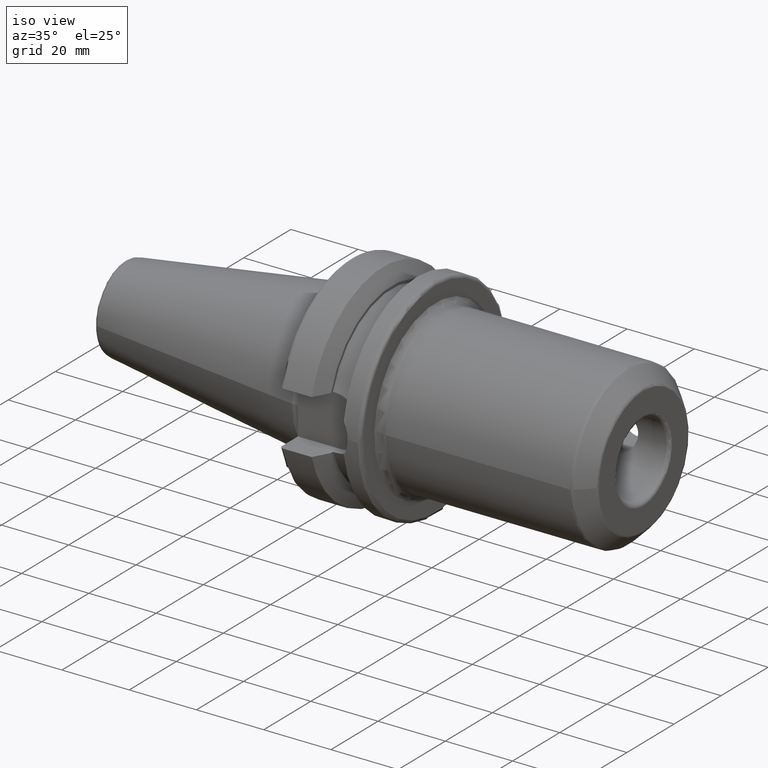
[diagram: clean part render]
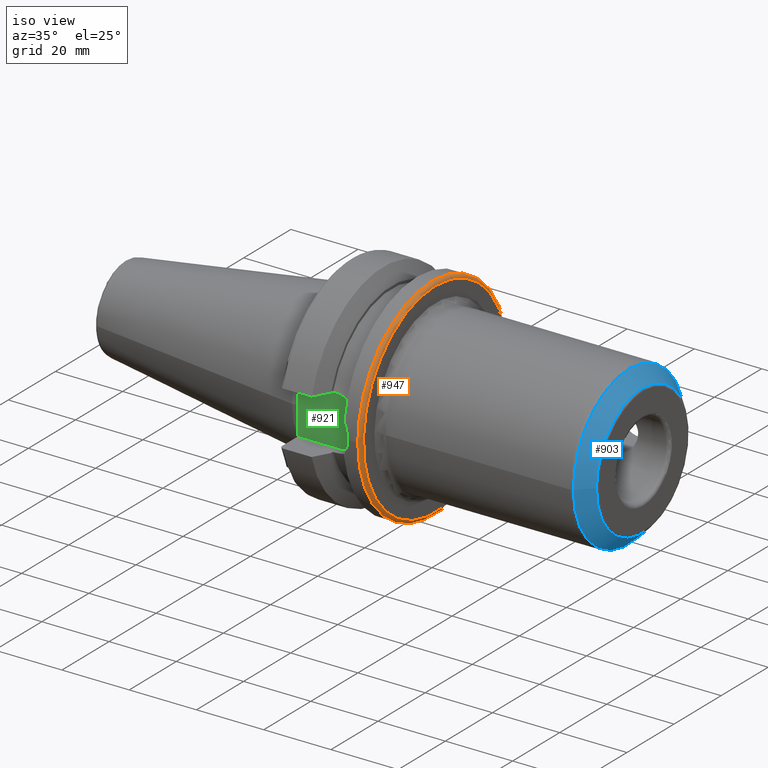
[diagram: same view with three faces highlighted in distinct colors, each labeled with its STEP entity id]
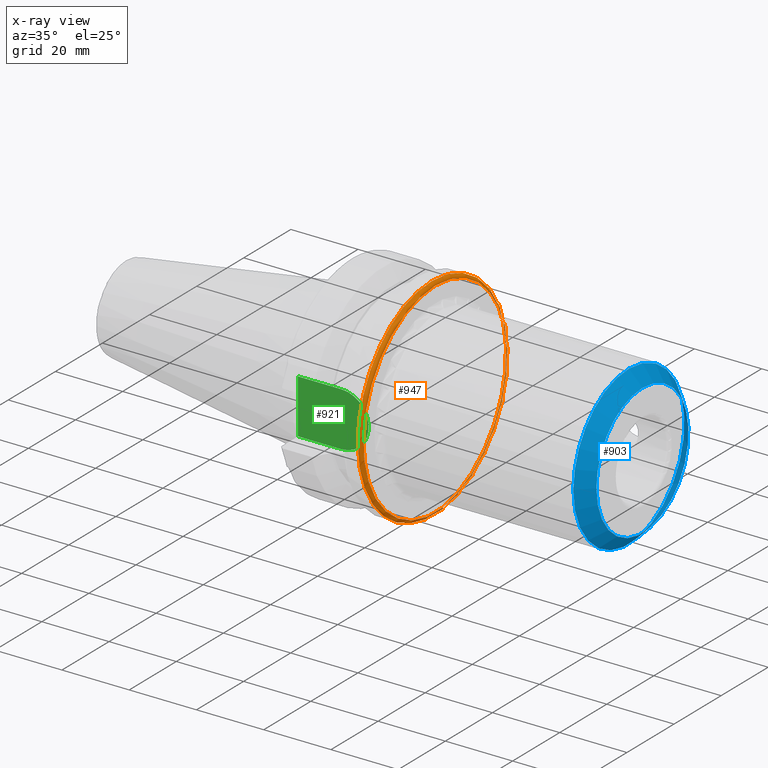
[diagram: x-ray of the same camera — body ghosted, the three highlighted faces saturated]
A machine part, iso view with three faces highlighted in distinct colors.
The next image is the same camera in x-ray (body ghosted, the three faces saturated) — at least one of them is partly hidden behind the body in this view.
Their STEP definitions:

[orange] entity #947 — the highlighted toroidal blend (fillet) surface has major radius 30.5 mm and minor (blend) radius 1 mm.
#243=FACE_OUTER_BOUND('',#308,.T.);
#308=EDGE_LOOP('',(#862,#863,#864,#865,#866));
#335=CIRCLE('',#1004,30.5);
#343=CIRCLE('',#1025,31.5);
#346=CIRCLE('',#1028,31.5);
#372=CIRCLE('',#1079,1.00000000000001);
#400=VERTEX_POINT('',#1564);
#434=VERTEX_POINT('',#2046);
#435=VERTEX_POINT('',#2047);
#499=EDGE_CURVE('',#400,#400,#335,.T.);
#543=EDGE_CURVE('',#434,#435,#343,.T.);
#548=EDGE_CURVE('',#435,#434,#346,.T.);
#600=EDGE_CURVE('',#400,#435,#372,.T.);
#862=ORIENTED_EDGE('',*,*,#499,.F.);
#863=ORIENTED_EDGE('',*,*,#600,.T.);
#864=ORIENTED_EDGE('',*,*,#548,.T.);
#865=ORIENTED_EDGE('',*,*,#543,.T.);
#866=ORIENTED_EDGE('',*,*,#600,.F.);
#897=TOROIDAL_SURFACE('',#1078,30.5,1.00000000000001);
#947=ADVANCED_FACE('',(#243),#897,.T.);
#1004=AXIS2_PLACEMENT_3D('',#1565,#1152,#1153);
#1025=AXIS2_PLACEMENT_3D('',#2048,#1216,#1217);
#1028=AXIS2_PLACEMENT_3D('',#2064,#1223,#1224);
#1078=AXIS2_PLACEMENT_3D('',#2210,#1341,#1342);
#1079=AXIS2_PLACEMENT_3D('',#2211,#1343,#1344);
#1152=DIRECTION('center_axis',(1.,0.,0.));
#1153=DIRECTION('ref_axis',(0.,0.,-1.));
#1216=DIRECTION('center_axis',(1.,0.,0.));
#1217=DIRECTION('ref_axis',(0.,0.,-1.));
#1223=DIRECTION('center_axis',(1.,0.,0.));
#1224=DIRECTION('ref_axis',(0.,0.,-1.));
#1341=DIRECTION('center_axis',(1.,0.,0.));
#1342=DIRECTION('ref_axis',(0.,0.,-1.));
#1343=DIRECTION('center_axis',(0.,-1.,-1.22464679914735E-16));
#1344=DIRECTION('ref_axis',(0.,-1.22464679914735E-16,1.));
#1564=CARTESIAN_POINT('',(27.,-3.73517273739943E-15,30.5));
#1565=CARTESIAN_POINT('Origin',(27.,0.,0.));
#2046=CARTESIAN_POINT('',(26.,-31.5,-3.85763741731416E-15));
#2047=CARTESIAN_POINT('',(26.,-3.85763741731416E-15,31.5));
#2048=CARTESIAN_POINT('Origin',(26.,0.,0.));
#2064=CARTESIAN_POINT('Origin',(26.,0.,0.));
#2210=CARTESIAN_POINT('Origin',(26.,0.,0.));
#2211=CARTESIAN_POINT('Origin',(26.,-3.73517273739943E-15,30.5));

[blue] entity #903 — the highlighted conical surface has half-angle 45 deg.
#21=CONICAL_SURFACE('',#990,21.563,0.785398163397447);
#56=LINE('',#1474,#103);
#103=VECTOR('',#1124,21.563);
#199=FACE_OUTER_BOUND('',#257,.T.);
#257=EDGE_LOOP('',(#632,#633,#634,#635,#636,#637));
#324=CIRCLE('',#988,19.5428932188135);
#325=CIRCLE('',#989,19.5428932188135);
#326=CIRCLE('',#991,23.5831067811866);
#327=CIRCLE('',#992,23.5831067811866);
#389=VERTEX_POINT('',#1467);
#390=VERTEX_POINT('',#1469);
#391=VERTEX_POINT('',#1473);
#392=VERTEX_POINT('',#1475);
#484=EDGE_CURVE('',#389,#390,#324,.T.);
#485=EDGE_CURVE('',#390,#389,#325,.T.);
#486=EDGE_CURVE('',#390,#391,#56,.T.);
#487=EDGE_CURVE('',#392,#391,#326,.T.);
#488=EDGE_CURVE('',#391,#392,#327,.T.);
#632=ORIENTED_EDGE('',*,*,#485,.F.);
#633=ORIENTED_EDGE('',*,*,#486,.T.);
#634=ORIENTED_EDGE('',*,*,#487,.F.);
#635=ORIENTED_EDGE('',*,*,#488,.F.);
#636=ORIENTED_EDGE('',*,*,#486,.F.);
#637=ORIENTED_EDGE('',*,*,#484,.F.);
#903=ADVANCED_FACE('',(#199),#21,.T.);
#988=AXIS2_PLACEMENT_3D('',#1470,#1118,#1119);
#989=AXIS2_PLACEMENT_3D('',#1471,#1120,#1121);
#990=AXIS2_PLACEMENT_3D('',#1472,#1122,#1123);
#991=AXIS2_PLACEMENT_3D('',#1476,#1125,#1126);
#992=AXIS2_PLACEMENT_3D('',#1477,#1127,#1128);
#1118=DIRECTION('center_axis',(1.,0.,0.));
#1119=DIRECTION('ref_axis',(0.,-1.,3.06161699786838E-17));
#1120=DIRECTION('center_axis',(1.,0.,0.));
#1121=DIRECTION('ref_axis',(0.,-1.,3.06161699786838E-17));
#1122=DIRECTION('center_axis',(-1.,0.,0.));
#1123=DIRECTION('ref_axis',(0.,1.,0.));
#1124=DIRECTION('',(-0.707106781186549,-0.707106781186546,-8.65956056235492E-17));
#1125=DIRECTION('center_axis',(-1.,0.,0.));
#1126=DIRECTION('ref_axis',(0.,-1.,3.06161699786838E-17));
#1127=DIRECTION('center_axis',(-1.,0.,0.));
#1128=DIRECTION('ref_axis',(0.,-1.,3.06161699786838E-17));
#1467=CARTESIAN_POINT('',(88.6071067811866,-2.39331416264984E-15,19.5428932188135));
#1469=CARTESIAN_POINT('',(88.6071067811866,-19.5428932188134,-2.39331416264984E-15));
#1470=CARTESIAN_POINT('Origin',(88.6071067811866,0.,-2.9916427033123E-15));
#1471=CARTESIAN_POINT('Origin',(88.6071067811866,0.,-2.9916427033123E-15));
#1472=CARTESIAN_POINT('Origin',(86.587,0.,0.));
#1473=CARTESIAN_POINT('',(84.5668932188134,-23.5831067811866,-2.88809762335304E-15));
#1474=CARTESIAN_POINT('',(86.587,-21.563,-2.64070589300144E-15));
#1475=CARTESIAN_POINT('',(84.5668932188134,-2.88809762335303E-15,23.5831067811866));
#1476=CARTESIAN_POINT('Origin',(84.5668932188134,0.,-3.61012202919129E-15));
#1477=CARTESIAN_POINT('Origin',(84.5668932188134,0.,-3.61012202919129E-15));

[green] entity #921 — the highlighted planar face has unit normal (0, 1, 0).
#73=LINE('',#2017,#120);
#75=LINE('',#2022,#122);
#79=LINE('',#2044,#126);
#120=VECTOR('',#1203,10.);
#122=VECTOR('',#1207,10.);
#126=VECTOR('',#1213,10.);
#184=PLANE('',#1023);
#217=FACE_OUTER_BOUND('',#281,.T.);
#281=EDGE_LOOP('',(#726,#727,#728,#729));
#342=CIRCLE('',#1020,8.05);
#420=VERTEX_POINT('',#1988);
#421=VERTEX_POINT('',#1990);
#427=VERTEX_POINT('',#2015);
#429=VERTEX_POINT('',#2021);
#526=EDGE_CURVE('',#420,#421,#342,.T.);
#534=EDGE_CURVE('',#427,#420,#73,.T.);
#536=EDGE_CURVE('',#421,#429,#75,.T.);
#542=EDGE_CURVE('',#429,#427,#79,.T.);
#726=ORIENTED_EDGE('',*,*,#536,.F.);
#727=ORIENTED_EDGE('',*,*,#526,.F.);
#728=ORIENTED_EDGE('',*,*,#534,.F.);
#729=ORIENTED_EDGE('',*,*,#542,.F.);
#921=ADVANCED_FACE('',(#217),#184,.F.);
#1020=AXIS2_PLACEMENT_3D('',#1991,#1194,#1195);
#1023=AXIS2_PLACEMENT_3D('',#2043,#1211,#1212);
#1194=DIRECTION('center_axis',(0.,1.,0.));
#1195=DIRECTION('ref_axis',(0.,0.,1.));
#1203=DIRECTION('',(1.,0.,8.57315076930623E-17));
#1207=DIRECTION('',(-1.,0.,-8.57315076930623E-17));
#1211=DIRECTION('center_axis',(0.,1.,0.));
#1212=DIRECTION('ref_axis',(0.,0.,1.));
#1213=DIRECTION('',(0.,0.,1.));
#1988=CARTESIAN_POINT('',(14.95,-22.6,8.05));
#1990=CARTESIAN_POINT('',(14.95,-22.6,-8.05));
#1991=CARTESIAN_POINT('Origin',(14.95,-22.6,0.));
#2015=CARTESIAN_POINT('',(1.99999999999999,-22.6,8.05));
#2017=CARTESIAN_POINT('',(1.99999999999999,-22.6,8.05));
#2021=CARTESIAN_POINT('',(1.99999999999999,-22.6,-8.05));
#2022=CARTESIAN_POINT('',(14.95,-22.6,-8.05));
#2043=CARTESIAN_POINT('Origin',(12.5,-22.6,0.));
#2044=CARTESIAN_POINT('',(1.99999999999999,-22.6,0.));